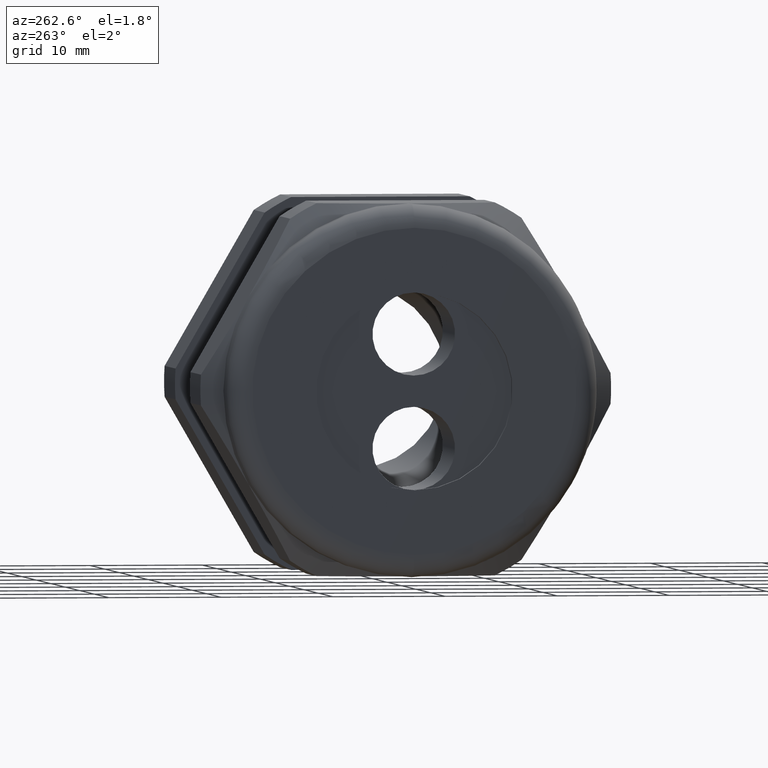
[diagram: clean part render]
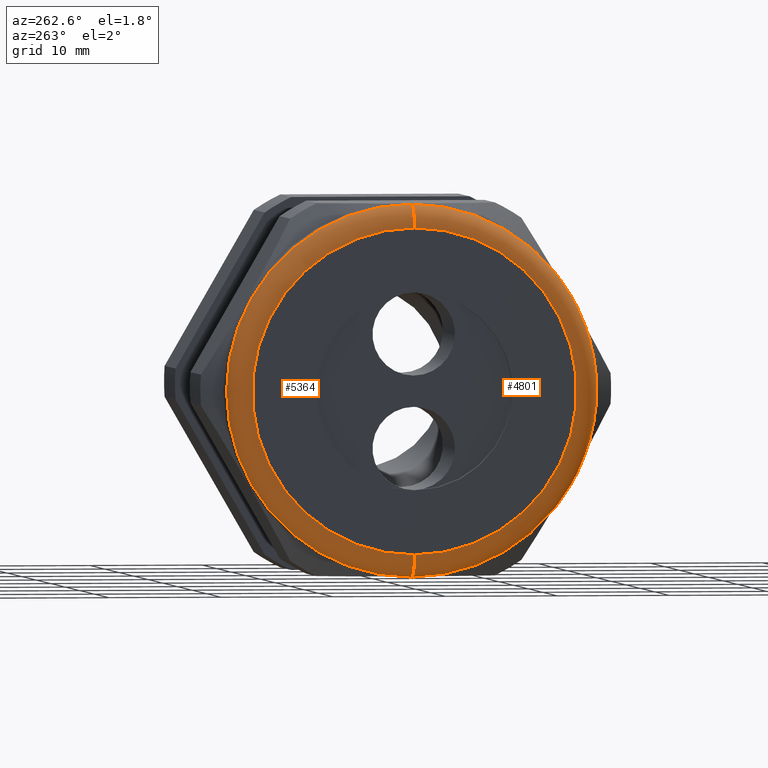
[diagram: same view with one multi-face feature highlighted, each face labeled with its STEP entity id]
A machine part, auxiliary view. The highlighted faces form ONE feature: a constant-radius fillet chain: 2 tangent blend faces with common blend radius 2.032 mm. The faces share edges in the B-rep.
Their STEP definitions:
[1] entity #4801 (Torus):
#805 = EDGE_CURVE ( 'NONE', #5480, #5417, #2603, .T. ) ;
#856 = EDGE_CURVE ( 'NONE', #5476, #5447, #2714, .T. ) ;
#2600 = DIRECTION ( 'NONE',  ( 0.0000000000000000000, 0.0000000000000000000, 1.000000000000000000 ) ) ;
#2601 = DIRECTION ( 'NONE',  ( 1.000000000000000000, 0.0000000000000000000, 0.0000000000000000000 ) ) ;
#2602 = AXIS2_PLACEMENT_3D ( 'NONE', #2608, #2601, #2600 ) ;
#2603 = CIRCLE ( 'NONE', #2602, 0.6499999999999999100 ) ;
#2608 = CARTESIAN_POINT ( 'NONE',  ( -1.449999999999999700, 0.0000000000000000000, 0.0000000000000000000 ) ) ;
#2710 = DIRECTION ( 'NONE',  ( 0.0000000000000000000, 0.0000000000000000000, 1.000000000000000000 ) ) ;
#2711 = DIRECTION ( 'NONE',  ( -1.000000000000000000, 0.0000000000000000000, 0.0000000000000000000 ) ) ;
#2712 = CARTESIAN_POINT ( 'NONE',  ( -1.529999999999999800, 0.0000000000000000000, 0.0000000000000000000 ) ) ;
#2713 = AXIS2_PLACEMENT_3D ( 'NONE', #2712, #2711, #2710 ) ;
#2714 = CIRCLE ( 'NONE', #2713, 0.5699999999999999500 ) ;
#3171 = DIRECTION ( 'NONE',  ( 0.0000000000000000000, 0.0000000000000000000, 1.000000000000000000 ) ) ;
#3172 = DIRECTION ( 'NONE',  ( -1.000000000000000000, 0.0000000000000000000, 0.0000000000000000000 ) ) ;
#3173 = AXIS2_PLACEMENT_3D ( 'NONE', #3181, #3172, #3171 ) ;
#3174 = TOROIDAL_SURFACE ( 'NONE', #3173, 0.5699999999999999500, 0.08000000000000000200 ) ;
#3175 = FACE_OUTER_BOUND ( 'NONE', #4800, .T. ) ;
#3181 = CARTESIAN_POINT ( 'NONE',  ( -1.449999999999999700, 0.0000000000000000000, 0.0000000000000000000 ) ) ;
#4214 = CARTESIAN_POINT ( 'NONE',  ( -1.449999999999999700, 0.0000000000000000000, -0.6499999999999999100 ) ) ;
#4232 = CARTESIAN_POINT ( 'NONE',  ( -1.529999999999999800, 0.0000000000000000000, 0.5699999999999999500 ) ) ;
#4262 = DIRECTION ( 'NONE',  ( 0.0000000000000000000, 0.0000000000000000000, -1.000000000000000000 ) ) ;
#4263 = DIRECTION ( 'NONE',  ( 0.0000000000000000000, -1.000000000000000000, 0.0000000000000000000 ) ) ;
#4264 = CARTESIAN_POINT ( 'NONE',  ( -1.449999999999999700, 0.0000000000000000000, 0.5699999999999999500 ) ) ;
#4265 = AXIS2_PLACEMENT_3D ( 'NONE', #4264, #4263, #4262 ) ;
#4266 = CIRCLE ( 'NONE', #4265, 0.07999999999999996000 ) ;
#4288 = DIRECTION ( 'NONE',  ( 0.0000000000000000000, -1.224646799147353900E-016, 1.000000000000000000 ) ) ;
#4289 = DIRECTION ( 'NONE',  ( 0.0000000000000000000, 1.000000000000000000, 1.224646799147353200E-016 ) ) ;
#4290 = CARTESIAN_POINT ( 'NONE',  ( -1.449999999999999700, 6.980486755139912600E-017, -0.5699999999999999500 ) ) ;
#4291 = AXIS2_PLACEMENT_3D ( 'NONE', #4290, #4289, #4288 ) ;
#4292 = CIRCLE ( 'NONE', #4291, 0.07999999999999996000 ) ;
#4293 = CARTESIAN_POINT ( 'NONE',  ( -1.449999999999999700, 7.960204194457794200E-017, 0.6499999999999999100 ) ) ;
#4300 = CARTESIAN_POINT ( 'NONE',  ( -1.529999999999999800, 7.470345474798854000E-017, -0.5699999999999999500 ) ) ;
#4800 = EDGE_LOOP ( 'NONE', ( #5567, #5615, #5590, #5582 ) ) ;
#4801 = ADVANCED_FACE ( 'NONE', ( #3175 ), #3174, .T. ) ;
#5417 = VERTEX_POINT ( 'NONE', #4214 ) ;
#5447 = VERTEX_POINT ( 'NONE', #4232 ) ;
#5463 = EDGE_CURVE ( 'NONE', #5480, #5447, #4266, .T. ) ;
#5476 = VERTEX_POINT ( 'NONE', #4300 ) ;
#5480 = VERTEX_POINT ( 'NONE', #4293 ) ;
#5481 = EDGE_CURVE ( 'NONE', #5417, #5476, #4292, .T. ) ;
#5567 = ORIENTED_EDGE ( 'NONE', *, *, #5481, .F. ) ;
#5582 = ORIENTED_EDGE ( 'NONE', *, *, #856, .F. ) ;
#5590 = ORIENTED_EDGE ( 'NONE', *, *, #5463, .T. ) ;
#5615 = ORIENTED_EDGE ( 'NONE', *, *, #805, .F. ) ;
[2] entity #5364 (Torus):
#4061 = FACE_OUTER_BOUND ( 'NONE', #5416, .T. ) ;
#4114 = DIRECTION ( 'NONE',  ( 0.0000000000000000000, 0.0000000000000000000, 1.000000000000000000 ) ) ;
#4115 = DIRECTION ( 'NONE',  ( -1.000000000000000000, 0.0000000000000000000, 0.0000000000000000000 ) ) ;
#4116 = CARTESIAN_POINT ( 'NONE',  ( -1.449999999999999700, 0.0000000000000000000, 0.0000000000000000000 ) ) ;
#4117 = AXIS2_PLACEMENT_3D ( 'NONE', #4116, #4115, #4114 ) ;
#4119 = TOROIDAL_SURFACE ( 'NONE', #4117, 0.5699999999999999500, 0.08000000000000000200 ) ;
#4214 = CARTESIAN_POINT ( 'NONE',  ( -1.449999999999999700, 0.0000000000000000000, -0.6499999999999999100 ) ) ;
#4232 = CARTESIAN_POINT ( 'NONE',  ( -1.529999999999999800, 0.0000000000000000000, 0.5699999999999999500 ) ) ;
#4251 = DIRECTION ( 'NONE',  ( 0.0000000000000000000, 0.0000000000000000000, 1.000000000000000000 ) ) ;
#4252 = DIRECTION ( 'NONE',  ( -1.000000000000000000, 0.0000000000000000000, 0.0000000000000000000 ) ) ;
#4253 = AXIS2_PLACEMENT_3D ( 'NONE', #4259, #4252, #4251 ) ;
#4254 = CIRCLE ( 'NONE', #4253, 0.5699999999999999500 ) ;
#4259 = CARTESIAN_POINT ( 'NONE',  ( -1.529999999999999800, 0.0000000000000000000, 0.0000000000000000000 ) ) ;
#4262 = DIRECTION ( 'NONE',  ( 0.0000000000000000000, 0.0000000000000000000, -1.000000000000000000 ) ) ;
#4263 = DIRECTION ( 'NONE',  ( 0.0000000000000000000, -1.000000000000000000, 0.0000000000000000000 ) ) ;
#4264 = CARTESIAN_POINT ( 'NONE',  ( -1.449999999999999700, 0.0000000000000000000, 0.5699999999999999500 ) ) ;
#4265 = AXIS2_PLACEMENT_3D ( 'NONE', #4264, #4263, #4262 ) ;
#4266 = CIRCLE ( 'NONE', #4265, 0.07999999999999996000 ) ;
#4283 = DIRECTION ( 'NONE',  ( 0.0000000000000000000, 0.0000000000000000000, 1.000000000000000000 ) ) ;
#4284 = DIRECTION ( 'NONE',  ( 1.000000000000000000, 0.0000000000000000000, 0.0000000000000000000 ) ) ;
#4285 = CARTESIAN_POINT ( 'NONE',  ( -1.449999999999999700, 0.0000000000000000000, 0.0000000000000000000 ) ) ;
#4286 = AXIS2_PLACEMENT_3D ( 'NONE', #4285, #4284, #4283 ) ;
#4287 = CIRCLE ( 'NONE', #4286, 0.6499999999999999100 ) ;
#4288 = DIRECTION ( 'NONE',  ( 0.0000000000000000000, -1.224646799147353900E-016, 1.000000000000000000 ) ) ;
#4289 = DIRECTION ( 'NONE',  ( 0.0000000000000000000, 1.000000000000000000, 1.224646799147353200E-016 ) ) ;
#4290 = CARTESIAN_POINT ( 'NONE',  ( -1.449999999999999700, 6.980486755139912600E-017, -0.5699999999999999500 ) ) ;
#4291 = AXIS2_PLACEMENT_3D ( 'NONE', #4290, #4289, #4288 ) ;
#4292 = CIRCLE ( 'NONE', #4291, 0.07999999999999996000 ) ;
#4293 = CARTESIAN_POINT ( 'NONE',  ( -1.449999999999999700, 7.960204194457794200E-017, 0.6499999999999999100 ) ) ;
#4300 = CARTESIAN_POINT ( 'NONE',  ( -1.529999999999999800, 7.470345474798854000E-017, -0.5699999999999999500 ) ) ;
#5364 = ADVANCED_FACE ( 'NONE', ( #4061 ), #4119, .T. ) ;
#5416 = EDGE_LOOP ( 'NONE', ( #5489, #5482, #5475, #5437 ) ) ;
#5417 = VERTEX_POINT ( 'NONE', #4214 ) ;
#5437 = ORIENTED_EDGE ( 'NONE', *, *, #5463, .F. ) ;
#5447 = VERTEX_POINT ( 'NONE', #4232 ) ;
#5463 = EDGE_CURVE ( 'NONE', #5480, #5447, #4266, .T. ) ;
#5468 = EDGE_CURVE ( 'NONE', #5447, #5476, #4254, .T. ) ;
#5475 = ORIENTED_EDGE ( 'NONE', *, *, #5468, .F. ) ;
#5476 = VERTEX_POINT ( 'NONE', #4300 ) ;
#5480 = VERTEX_POINT ( 'NONE', #4293 ) ;
#5481 = EDGE_CURVE ( 'NONE', #5417, #5476, #4292, .T. ) ;
#5482 = ORIENTED_EDGE ( 'NONE', *, *, #5481, .T. ) ;
#5483 = EDGE_CURVE ( 'NONE', #5417, #5480, #4287, .T. ) ;
#5489 = ORIENTED_EDGE ( 'NONE', *, *, #5483, .F. ) ;